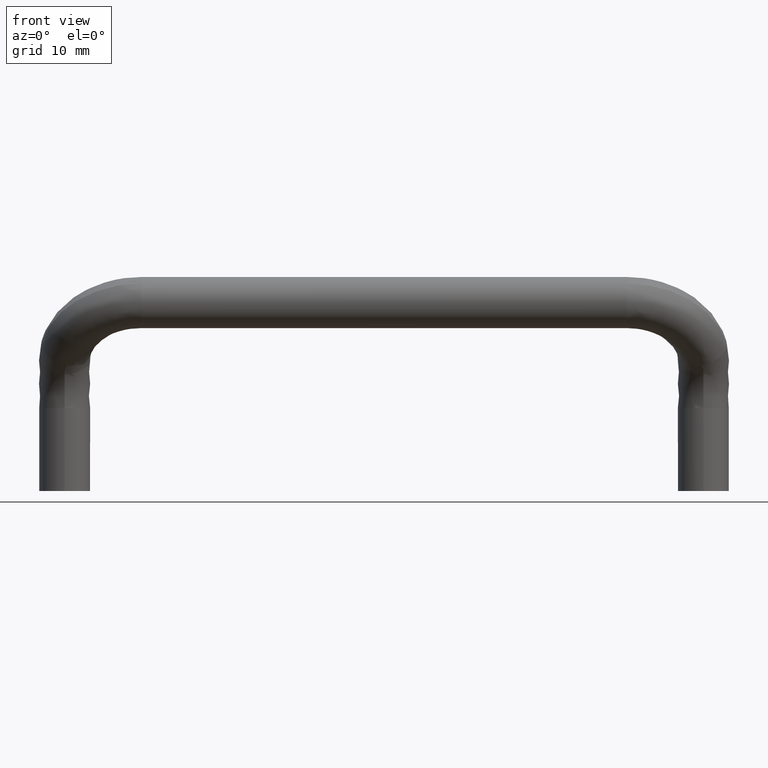
[diagram: clean part render]
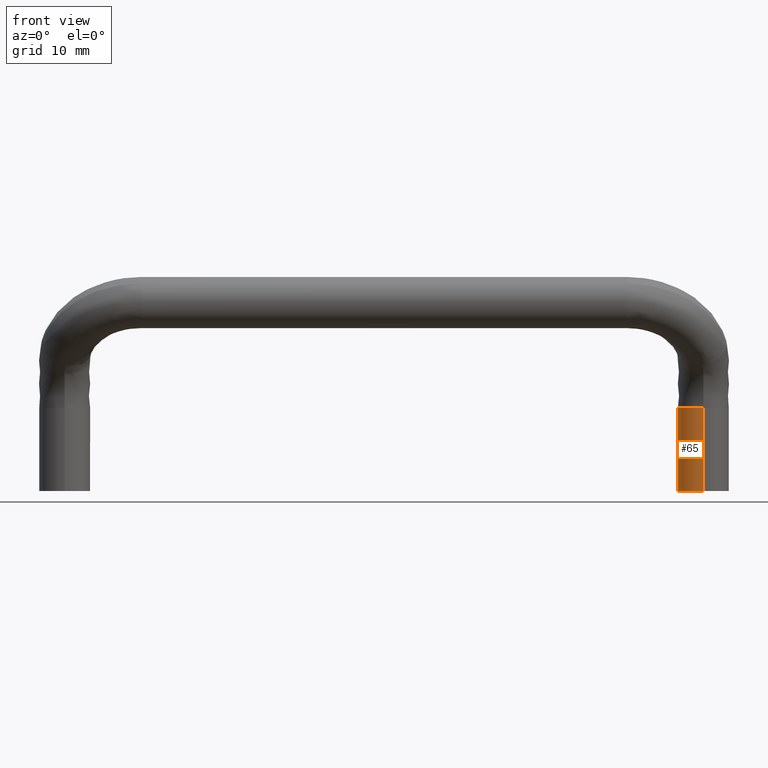
[diagram: same view with one face highlighted and labeled with its STEP entity id]
A machine part, front view. The second image highlights one B-rep face of the part: STEP entity #65.
In plain terms, the highlighted cylindrical surface (edge-blend (fillet) strip) has radius 4 mm, axis along (0, -0, -1).
Its self-contained STEP definition (entity closure, byte-faithful):
#65=ADVANCED_FACE('',(#323),#322,.T.);
#322=CYLINDRICAL_SURFACE('',#846,4.00000000000E+00);
#323=FACE_OUTER_BOUND('',#847,.T.);
#843=CARTESIAN_POINT('',(5.00000000001E+01,9.99999999999E+00,-1.90000000000E+01));
#844=DIRECTION('',(0.00000000000E+00,-3.23592648403E-13,-1.00000000000E+00));
#845=DIRECTION('',(0.00000000000E+00,1.00000000000E+00,-3.23592648403E-13));
#846=AXIS2_PLACEMENT_3D('',#843,#844,#845);
#847=EDGE_LOOP('',(#982,#983,#984,#985,#986));
#982=ORIENTED_EDGE('',*,*,#1060,.T.);
#983=ORIENTED_EDGE('',*,*,#1059,.T.);
#984=ORIENTED_EDGE('',*,*,#1066,.T.);
#985=ORIENTED_EDGE('',*,*,#1024,.F.);
#986=ORIENTED_EDGE('',*,*,#1067,.F.);
#1024=EDGE_CURVE('',#1210,#1211,#1212,.T.);
#1059=EDGE_CURVE('',#1441,#1442,#1443,.T.);
#1060=EDGE_CURVE('',#1449,#1441,#1450,.T.);
#1066=EDGE_CURVE('',#1442,#1211,#1486,.T.);
#1067=EDGE_CURVE('',#1449,#1210,#1492,.T.);
#1210=VERTEX_POINT('',#1620);
#1211=VERTEX_POINT('',#1621);
#1212=CIRCLE('',#1625,4.00000000000E+00);
#1441=VERTEX_POINT('',#1775);
#1442=VERTEX_POINT('',#1776);
#1443=CIRCLE('',#1780,4.00000000000E+00);
#1449=VERTEX_POINT('',#1781);
#1450=CIRCLE('',#1785,4.00000000000E+00);
#1486=(BOUNDED_CURVE() B_SPLINE_CURVE(1,(#1800,#1801),.UNSPECIFIED.,.F.,.F.) B_SPLINE_CURVE_WITH_KNOTS((2,2),(8.33333343261E-02,9.16666667006E-01),.UNSPECIFIED.) CURVE() GEOMETRIC_REPRESENTATION_ITEM() RATIONAL_B_SPLINE_CURVE((1.00000000000E+00,1.00000000000E+00)) REPRESENTATION_ITEM('') );
#1492=(BOUNDED_CURVE() B_SPLINE_CURVE(1,(#1802,#1803),.UNSPECIFIED.,.F.,.F.) B_SPLINE_CURVE_WITH_KNOTS((2,2),(8.33333333335E-02,9.16666666666E-01),.UNSPECIFIED.) CURVE() GEOMETRIC_REPRESENTATION_ITEM() RATIONAL_B_SPLINE_CURVE((7.50000000000E-01,7.50000000000E-01)) REPRESENTATION_ITEM('') );
#1620=CARTESIAN_POINT('',(5.00000000001E+01,5.99999999999E+00,-2.54999999999E+01));
#1621=CARTESIAN_POINT('',(5.00000000001E+01,1.40000000000E+01,-2.54999999999E+01));
#1622=CARTESIAN_POINT('',(5.00000000001E+01,9.99999999999E+00,-2.54999999999E+01));
#1623=DIRECTION('',(2.24207754292E-44,5.89750470679E-13,-1.00000000000E+00));
#1624=DIRECTION('',(-0.00000000000E+00,-1.00000000000E+00,-5.89750470679E-13));
#1625=AXIS2_PLACEMENT_3D('',#1622,#1623,#1624);
#1775=CARTESIAN_POINT('',(4.60000000001E+01,1.00000000000E+01,-1.24999999999E+01));
#1776=CARTESIAN_POINT('',(4.99999999995E+01,1.40000000000E+01,-1.24999999999E+01));
#1777=CARTESIAN_POINT('',(5.00000000001E+01,1.00000000000E+01,-1.24999999999E+01));
#1778=DIRECTION('',(3.23525924785E-13,-3.35757632988E-17,-1.00000000000E+00));
#1779=DIRECTION('',(-1.00000000000E+00,6.75864529273E-16,-3.23525924785E-13));
#1780=AXIS2_PLACEMENT_3D('',#1777,#1778,#1779);
#1781=CARTESIAN_POINT('',(5.00000000001E+01,6.00000000000E+00,-1.24999999999E+01));
#1782=CARTESIAN_POINT('',(5.00000000001E+01,1.00000000000E+01,-1.24999999999E+01));
#1783=DIRECTION('',(3.23525924785E-13,-3.35757632988E-17,-1.00000000000E+00));
#1784=DIRECTION('',(-1.00000000000E+00,6.75864529273E-16,-3.23525924785E-13));
#1785=AXIS2_PLACEMENT_3D('',#1782,#1783,#1784);
#1800=CARTESIAN_POINT('',(5.00000000001E+01,1.40000000000E+01,-1.25000000154E+01));
#1801=CARTESIAN_POINT('',(5.00000000001E+01,1.40000000000E+01,-2.55000000052E+01));
#1802=CARTESIAN_POINT('',(5.00000000001E+01,5.99999999999E+00,-1.24999999999E+01));
#1803=CARTESIAN_POINT('',(5.00000000001E+01,5.99999999999E+00,-2.54999999999E+01));